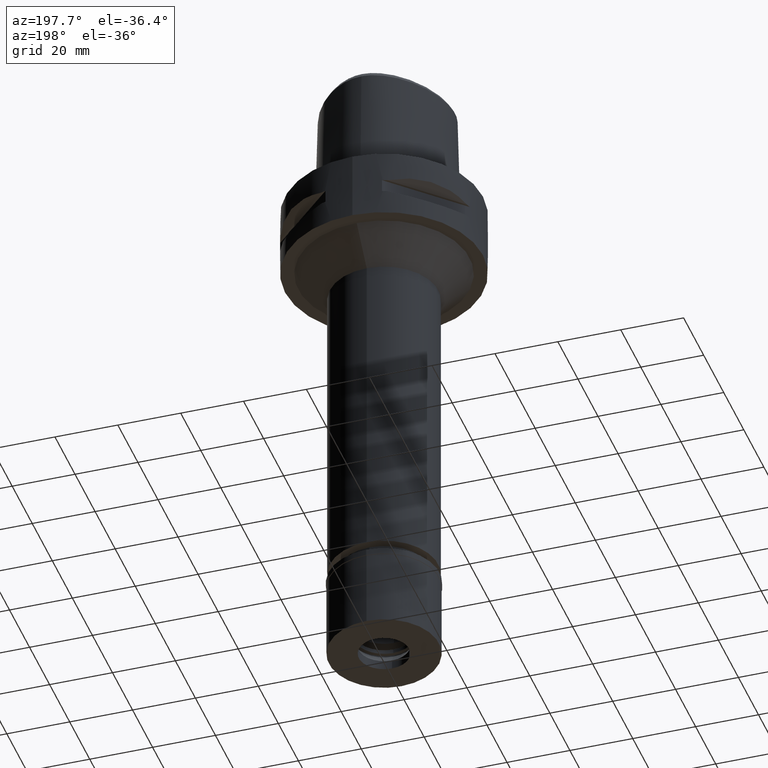
[diagram: clean part render]
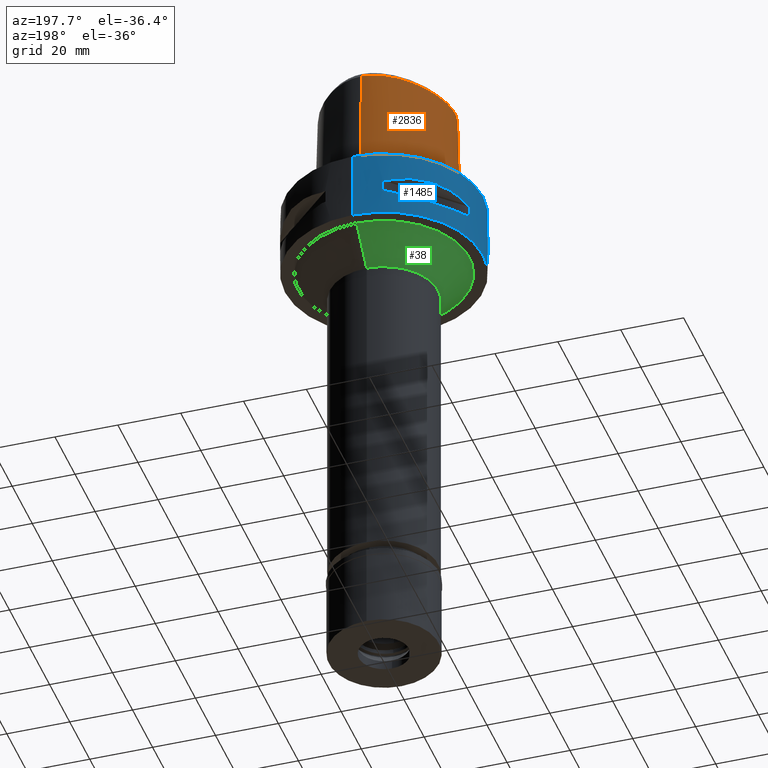
[diagram: same view with three faces highlighted in distinct colors, each labeled with its STEP entity id]
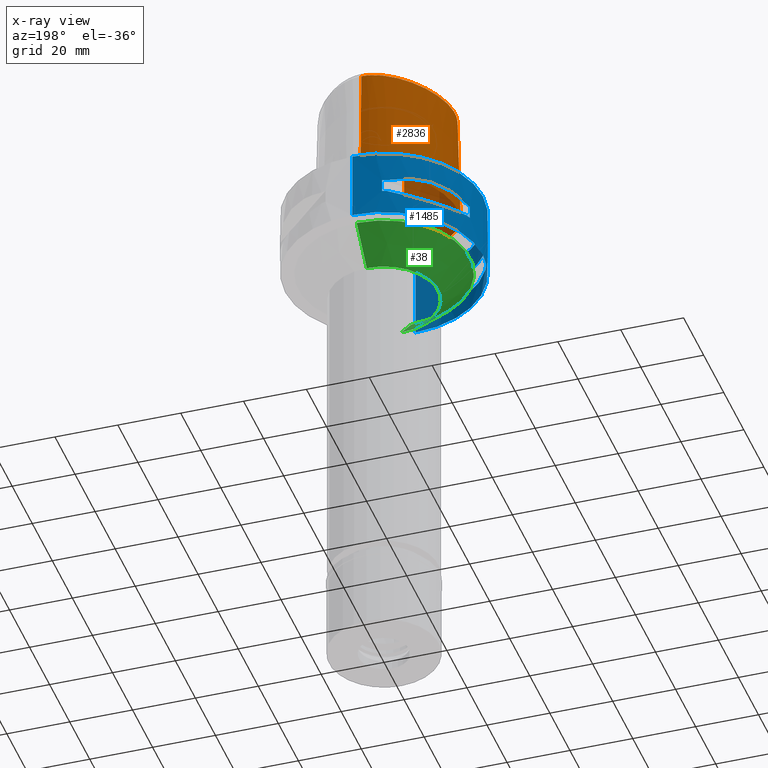
[diagram: x-ray of the same camera — body ghosted, the three highlighted faces saturated]
A machine part, auxiliary view with three faces highlighted in distinct colors.
The next image is the same camera in x-ray (body ghosted, the three faces saturated) — at least one of them is partly hidden behind the body in this view.
Their STEP definitions:

[orange] entity #2836 — the highlighted face is a freeform B-spline surface patch.
#20 = CARTESIAN_POINT ( 'NONE',  ( -17.90324032096781437, -13.53935111954875303, 36.52186244848006424 ) ) ;
#46 = CARTESIAN_POINT ( 'NONE',  ( -1.813182109769000202E-11, 22.56201468012000078, 36.52186680743999858 ) ) ;
#61 = CARTESIAN_POINT ( 'NONE',  ( 0.0000000000000000000, -20.18628283968999781, 19.55000000000000071 ) ) ;
#87 = CARTESIAN_POINT ( 'NONE',  ( -7.420053160085999799, 21.05635749102000176, 11.93048047699000058 ) ) ;
#96 = CARTESIAN_POINT ( 'NONE',  ( -3.089131642920992959, -20.21685897408069010, 12.88004451868239819 ) ) ;
#109 = CARTESIAN_POINT ( 'NONE',  ( -2.373090333079999947, 22.37624354556000128, 37.25231659141000051 ) ) ;
#121 = CARTESIAN_POINT ( 'NONE',  ( -2.086814383362593173, -20.31269213283710329, 12.02647857452719116 ) ) ;
#135 = CARTESIAN_POINT ( 'NONE',  ( -13.69241983444999988, 15.03666395342999884, 37.25231659141000051 ) ) ;
#136 = CARTESIAN_POINT ( 'NONE',  ( -22.24453910448134764, -4.100468749847681060, -1.034246438383172595E-06 ) ) ;
#150 = CARTESIAN_POINT ( 'NONE',  ( -6.933881406493999842E-13, -20.38876923348000147, 11.44999999999999929 ) ) ;
#160 = CARTESIAN_POINT ( 'NONE',  ( 0.6657744346489000709, -19.73734270106000110, 37.25231659141000051 ) ) ;
#173 = CARTESIAN_POINT ( 'NONE',  ( -3.438474044888219616, -20.17226853620289617, 13.35950353148342451 ) ) ;
#185 = CARTESIAN_POINT ( 'NONE',  ( -17.88993660667000185, -13.52675025285000032, 37.25231659141000051 ) ) ;
#199 = B_SPLINE_CURVE_WITH_KNOTS ( 'NONE', 3,
 ( #4461, #238, #4038, #561, #2105, #1769, #2845, #3330, #2928, #4508, #136, #3984, #4868, #4401, #3649, #215, #1371, #966, #2051, #914, #4484, #3597, #3229 ),
 .UNSPECIFIED., .F., .F.,
 ( 4, 1, 1, 1, 1, 1, 1, 1, 1, 1, 1, 1, 1, 1, 1, 1, 1, 1, 1, 1, 4 ),
 ( 0.0000000000000000000, 0.04166666666724999635, 0.08333333333387001052, 0.1250000000004999889, 0.1666666666672000086, 0.2500000000004000134, 0.3333333333335999904, 0.4166666666670000296, 0.5000000000001999512, 0.5416666666668999985, 0.5833333333333999837, 0.6250000000001000311, 0.6458333333333999837, 0.6666666666667000474, 0.6875000000000000000, 0.7083333333333000637, 0.7500000000000000000, 0.7916666666666000163, 0.8333333333332000326, 0.9166666666664999852, 1.000000000000000000 ),
 .UNSPECIFIED. ) ;
#213 = CARTESIAN_POINT ( 'NONE',  ( -11.02138184255000120, -18.31230465415999831, 24.59139853419999966 ) ) ;
#215 = CARTESIAN_POINT ( 'NONE',  ( -19.64947367958555091, -12.82525392147471166, -1.034246438383172595E-06 ) ) ;
#237 = CARTESIAN_POINT ( 'NONE',  ( -18.89485289226000120, -12.27684381620000131, 37.25231659141000051 ) ) ;
#238 = CARTESIAN_POINT ( 'NONE',  ( -0.8548392441382537399, 23.47500002585261214, -1.034246438383172595E-06 ) ) ;
#256 = CARTESIAN_POINT ( 'NONE',  ( -14.21104803024000063, -16.40237711533000109, 37.25231659141000051 ) ) ;
#334 = CARTESIAN_POINT ( 'NONE',  ( 0.0000000000000000000, -20.18628283968999781, 19.55000000000000071 ) ) ;
#336 = B_SPLINE_SURFACE_WITH_KNOTS ( 'NONE', 3, 3, ( 
 ( #2350, #3901, #1966, #1264 ),
 ( #2844, #3524, #2791, #1592 ),
 ( #829, #2374, #3928, #913 ),
 ( #454, #4344, #2820, #109 ),
 ( #3228, #3958, #4372, #3596 ),
 ( #3548, #87, #3171, #1618 ),
 ( #2428, #4728, #3571, #1641 ),
 ( #1566, #3197, #4752, #135 ),
 ( #1666, #1291, #4399, #2456 ),
 ( #4063, #4430, #4036, #1370 ),
 ( #4115, #2900, #4887, #3352 ),
 ( #2871, #3700, #2152, #639 ),
 ( #559, #2486, #1692, #1319 ),
 ( #3250, #4459, #3329, #2103 ),
 ( #965, #2178, #1416, #1768 ),
 ( #1040, #3674, #2953, #4506 ),
 ( #2510, #2590, #939, #237 ),
 ( #3723, #4139, #3648, #185 ),
 ( #1718, #4912, #4808, #584 ),
 ( #3276, #4836, #2130, #256 ),
 ( #1347, #4090, #213, #4534 ),
 ( #1746, #3308, #4866, #2926 ),
 ( #990, #1390, #4482, #2538 ),
 ( #612, #661, #1014, #3624 ),
 ( #2564, #1792, #2977, #160 ) ),
 .UNSPECIFIED., .F., .F., .F.,
 ( 4, 1, 1, 1, 1, 1, 1, 1, 1, 1, 1, 1, 1, 1, 1, 1, 1, 1, 1, 1, 1, 1, 4 ),
 ( 4, 4 ),
 ( -0.01173777939042000042, 0.0000000000000000000, 0.04166666666724999635, 0.08333333333387001052, 0.1250000000004999889, 0.1666666666672000086, 0.2500000000004000134, 0.3333333333335999904, 0.4166666666670000296, 0.5000000000001999512, 0.5416666666668999985, 0.5833333333333999837, 0.6250000000001000311, 0.6458333333333999837, 0.6666666666667000474, 0.6875000000000000000, 0.7083333333333000637, 0.7500000000000000000, 0.7916666666666000163, 0.8333333333332000326, 0.9166666666664999852, 1.000000000000000000, 1.008985696609000060 ),
 ( 4.009810272015000799E-09, 0.9999997954996000527 ),
 .UNSPECIFIED. ) ;
#366 = CARTESIAN_POINT ( 'NONE',  ( -1.944872162919951242, -20.14473830020723000, 19.05307826099487301 ) ) ;
#392 = CARTESIAN_POINT ( 'NONE',  ( -2.187955111047390488, -20.13397228737174771, 18.90818030784005188 ) ) ;
#414 = ORIENTED_EDGE ( 'NONE', *, *, #2122, .T. ) ;
#416 = CARTESIAN_POINT ( 'NONE',  ( -2.095753548405626443, -20.13818364214462875, 18.96577014706425501 ) ) ;
#445 = CARTESIAN_POINT ( 'NONE',  ( -1.025211814377291475, -20.17465818941732891, 19.42048404905546022 ) ) ;
#454 = CARTESIAN_POINT ( 'NONE',  ( -2.568271205268000124, 23.31126238145999707, -0.7304375802236999782 ) ) ;
#467 = CARTESIAN_POINT ( 'NONE',  ( -3.553766164807452999, -20.15576042543209923, 13.55638603583962798 ) ) ;
#487 = CARTESIAN_POINT ( 'NONE',  ( -4.467522189396158083, -19.48130287050819476, 36.52186244848006424 ) ) ;
#492 = CARTESIAN_POINT ( 'NONE',  ( -3.294464282139349720, -20.19175818983857695, 13.14063372506664606 ) ) ;
#507 = CARTESIAN_POINT ( 'NONE',  ( -3.736722311398999796, -19.67781602443999844, 31.80000000000000071 ) ) ;
#518 = CARTESIAN_POINT ( 'NONE',  ( -3.377353639916971240, -20.18061854612787087, 13.26476903757087378 ) ) ;
#559 = CARTESIAN_POINT ( 'NONE',  ( -22.07548128864999981, -6.850245535130000007, -0.7304375802236999782 ) ) ;
#561 = CARTESIAN_POINT ( 'NONE',  ( -5.098437026934316663, 22.52602541473402198, -1.034246438383172595E-06 ) ) ;
#584 = CARTESIAN_POINT ( 'NONE',  ( -16.38077696125999694, -14.94316464898999897, 37.25231659141000051 ) ) ;
#597 = ORIENTED_EDGE ( 'NONE', *, *, #1548, .T. ) ;
#599 = EDGE_CURVE ( 'NONE', #1736, #3879, #1930, .T. ) ;
#612 = CARTESIAN_POINT ( 'NONE',  ( 0.4560943669786999832, -20.69106768230999904, -0.7304375802236999782 ) ) ;
#639 = CARTESIAN_POINT ( 'NONE',  ( -21.31039837703000117, -4.105938496762999712, 37.25231659141000051 ) ) ;
#661 = CARTESIAN_POINT ( 'NONE',  ( 0.4520368087158999626, -20.37458464690000071, 11.93048047699000058 ) ) ;
#772 = CARTESIAN_POINT ( 'NONE',  ( -1.222079501492473241, -20.16967619644331933, 19.36182732690642538 ) ) ;
#819 = CARTESIAN_POINT ( 'NONE',  ( -3.623054736483410920, -20.05423874947322105, 17.31100359226990548 ) ) ;
#829 = CARTESIAN_POINT ( 'NONE',  ( -0.6149727125725999999, 23.51889464678999886, -0.7304375802236999782 ) ) ;
#843 = CARTESIAN_POINT ( 'NONE',  ( -3.520475118947736792, -20.16064927175108679, 13.49656734865834018 ) ) ;
#875 = CARTESIAN_POINT ( 'NONE',  ( -3.466483550187511753, -20.16833646136333158, 13.40542637771374146 ) ) ;
#898 = CARTESIAN_POINT ( 'NONE',  ( -2.875757950341226277, -20.24102512592877190, 12.64823125461331266 ) ) ;
#913 = CARTESIAN_POINT ( 'NONE',  ( -0.5657070368247999470, 22.56734916309999761, 37.25231659141000051 ) ) ;
#914 = CARTESIAN_POINT ( 'NONE',  ( -11.23259757615546128, -18.89324221193531983, -1.034246438383172595E-06 ) ) ;
#918 = CARTESIAN_POINT ( 'NONE',  ( -18.90964971338619804, -12.28759719904831726, 36.52186244848006424 ) ) ;
#924 = CARTESIAN_POINT ( 'NONE',  ( -0.5047993661900957996, -20.38876923348000503, 11.44999999999999929 ) ) ;
#939 = CARTESIAN_POINT ( 'NONE',  ( -19.15132530958999979, -12.46323155922000048, 24.59139853419999966 ) ) ;
#952 = CARTESIAN_POINT ( 'NONE',  ( -3.748882549353759863, -20.12487725615872591, 13.96753193210146016 ) ) ;
#965 = CARTESIAN_POINT ( 'NONE',  ( -20.94844325639000004, -10.61175396898000045, -0.7304375802236999782 ) ) ;
#966 = CARTESIAN_POINT ( 'NONE',  ( -16.95889174198938676, -15.67838869228107335, -1.034246438383172595E-06 ) ) ;
#990 = CARTESIAN_POINT ( 'NONE',  ( -1.886862292100000005, -20.71358859662999663, -0.7304375802236999782 ) ) ;
#1014 = CARTESIAN_POINT ( 'NONE',  ( 0.4479792504530000219, -20.05810161148999882, 24.59139853419999966 ) ) ;
#1040 = CARTESIAN_POINT ( 'NONE',  ( -20.36546124298000038, -11.75800453082999830, -0.7304375802236999782 ) ) ;
#1116 = EDGE_CURVE ( 'NONE', #3461, #2511, #2267, .T. ) ;
#1142 = B_SPLINE_CURVE_WITH_KNOTS ( 'NONE', 3,
 ( #2765, #3982, #4677, #507 ),
 .UNSPECIFIED., .F., .F.,
 ( 4, 4 ),
 ( 0.0000000000000000000, 1.000000000000000000 ),
 .UNSPECIFIED. ) ;
#1154 = CARTESIAN_POINT ( 'NONE',  ( -3.474550157063373668, -20.06258684786147839, 17.58509941784220487 ) ) ;
#1202 = CARTESIAN_POINT ( 'NONE',  ( -2.218923952806688416, -20.13252298611815405, 18.88809933006218955 ) ) ;
#1227 = CARTESIAN_POINT ( 'NONE',  ( -3.408875187706380760, -20.17633333109262495, 13.31312751154035645 ) ) ;
#1250 = CARTESIAN_POINT ( 'NONE',  ( -3.732557508995410167, -20.04859144260191783, 17.07180291399405903 ) ) ;
#1264 = CARTESIAN_POINT ( 'NONE',  ( 0.6658293008905999955, 22.52368289122999911, 37.25231659141000051 ) ) ;
#1281 = CARTESIAN_POINT ( 'NONE',  ( -4.001055636211793498, -20.04208398455365625, 16.14154222857165166 ) ) ;
#1291 = CARTESIAN_POINT ( 'NONE',  ( -17.80867312140999914, 10.28184210891000028, 11.93048047699000058 ) ) ;
#1297 = CARTESIAN_POINT ( 'NONE',  ( -3.637738201363999835, -19.56971413236999879, 36.52186244848000030 ) ) ;
#1304 = CARTESIAN_POINT ( 'NONE',  ( -3.765489374949923196, -20.12204791086962885, 14.00864527312733010 ) ) ;
#1319 = CARTESIAN_POINT ( 'NONE',  ( -21.13154892659999717, -6.714587083351999830, 37.25231659141000051 ) ) ;
#1347 = CARTESIAN_POINT ( 'NONE',  ( -11.23887130166999881, -18.91049775780000175, -0.7304375802236999782 ) ) ;
#1370 = CARTESIAN_POINT ( 'NONE',  ( -19.86834437125000008, 4.339653689466000053, 37.25231659141000051 ) ) ;
#1371 = CARTESIAN_POINT ( 'NONE',  ( -18.56841067026435965, -14.16937990065208552, -1.034246438383172595E-06 ) ) ;
#1390 = CARTESIAN_POINT ( 'NONE',  ( -1.870070494241999892, -20.39691396690000147, 11.93048047699000058 ) ) ;
#1416 = CARTESIAN_POINT ( 'NONE',  ( -20.36913780160999821, -10.35391846120000103, 24.59139853419999966 ) ) ;
#1498 = CARTESIAN_POINT ( 'NONE',  ( 6.821562232475935593E-09, -19.98212988583398797, 27.71666688228309994 ) ) ;
#1506 = CARTESIAN_POINT ( 'NONE',  ( -3.538328569009118407, -20.05892019842420382, 17.47427695038242845 ) ) ;
#1529 = CARTESIAN_POINT ( 'NONE',  ( -2.852856104024935391, -20.09931387729061569, 18.37467926461878065 ) ) ;
#1548 = EDGE_CURVE ( 'NONE', #4902, #1940, #2934, .T. ) ;
#1552 = CARTESIAN_POINT ( 'NONE',  ( -4.757642277158359967, 21.67478330407117681, 36.52186244848006424 ) ) ;
#1555 = DIRECTION ( 'NONE',  ( 1.535578410125960641E-12, 0.02499051290971940689, -0.9996876883629751687 ) ) ;
#1566 = CARTESIAN_POINT ( 'NONE',  ( -14.42198651810999976, 15.65278600090999994, -0.7304375802236999782 ) ) ;
#1580 = CARTESIAN_POINT ( 'NONE',  ( 0.0000000000000000000, -20.18628283968999781, 19.55000000000000071 ) ) ;
#1592 = CARTESIAN_POINT ( 'NONE',  ( 0.4441907078573000267, 22.53710793140999868, 37.25231659141000051 ) ) ;
#1604 = CARTESIAN_POINT ( 'NONE',  ( -1.572984596533470780, -20.34569619827901121, 11.76794029727463275 ) ) ;
#1618 = CARTESIAN_POINT ( 'NONE',  ( -7.099337802463000280, 20.50831395155999815, 37.25231659141000051 ) ) ;
#1629 = CARTESIAN_POINT ( 'NONE',  ( -1.592612062468478529, -20.34460894491098415, 11.77623291199352273 ) ) ;
#1641 = CARTESIAN_POINT ( 'NONE',  ( -10.14358078684999853, 18.45723421399999964, 37.25231659141000051 ) ) ;
#1648 = CARTESIAN_POINT ( 'NONE',  ( -21.32871527670060630, -4.105831244394563484, 36.52186244848006424 ) ) ;
#1655 = CARTESIAN_POINT ( 'NONE',  ( -1.678454493257345082, -20.33967188086224809, 11.81405957882908453 ) ) ;
#1663 = VECTOR ( 'NONE', #1555, 1000.000000000000114 ) ;
#1666 = CARTESIAN_POINT ( 'NONE',  ( -18.08416038101999845, 10.44089487089000023, -0.7304375802236999782 ) ) ;
#1688 = CARTESIAN_POINT ( 'NONE',  ( -2.503154198992773249, -19.81241979316222412, 31.80000012753033545 ) ) ;
#1692 = CARTESIAN_POINT ( 'NONE',  ( -21.44619304727999776, -6.759806567277999889, 24.59139853419999966 ) ) ;
#1718 = CARTESIAN_POINT ( 'NONE',  ( -16.97022730955999847, -15.69280482917999997, -0.7304375802236999782 ) ) ;
#1736 = VERTEX_POINT ( 'NONE', #3462 ) ;
#1746 = CARTESIAN_POINT ( 'NONE',  ( -6.344715576255000045, -20.31619964721000215, -0.7304375802236999782 ) ) ;
#1768 = CARTESIAN_POINT ( 'NONE',  ( -20.07948507421999906, -10.22500070731000044, 37.25231659141000051 ) ) ;
#1769 = CARTESIAN_POINT ( 'NONE',  ( -10.74572892731183948, 19.17433595741139030, -1.034246438383172595E-06 ) ) ;
#1792 = CARTESIAN_POINT ( 'NONE',  ( 0.6779535350887999634, -20.37023526527999806, 11.93048047699000058 ) ) ;
#1862 = ORIENTED_EDGE ( 'NONE', *, *, #4039, .T. ) ;
#1878 = CARTESIAN_POINT ( 'NONE',  ( -1.435263460290662652, -20.16346600381253751, 19.28743623777368654 ) ) ;
#1894 = VERTEX_POINT ( 'NONE', #4397 ) ;
#1905 = CARTESIAN_POINT ( 'NONE',  ( -2.360389010909460517, -20.12578017861218527, 18.79373387522309358 ) ) ;
#1927 = CARTESIAN_POINT ( 'NONE',  ( -3.637738201363999835, -19.56971413236999879, 36.52186244848000030 ) ) ;
#1930 = B_SPLINE_CURVE_WITH_KNOTS ( 'NONE', 3,
 ( #2645, #1498, #2720, #334 ),
 .UNSPECIFIED., .F., .F.,
 ( 4, 4 ),
 ( 0.0000000000000000000, 1.000000000000000000 ),
 .UNSPECIFIED. ) ;
#1933 = CARTESIAN_POINT ( 'NONE',  ( -2.236225399043197282, -20.13170464962382766, 18.87669531694534797 ) ) ;
#1940 = VERTEX_POINT ( 'NONE', #2217 ) ;
#1966 = CARTESIAN_POINT ( 'NONE',  ( 0.6850314155779999581, 22.83959056888999939, 24.59139853419999966 ) ) ;
#1983 = CARTESIAN_POINT ( 'NONE',  ( -1.656252726920341978, -20.15609978928733881, 19.19765142506812694 ) ) ;
#2007 = CARTESIAN_POINT ( 'NONE',  ( -3.024127618930171568, -20.22444760030265698, 12.80466032897661144 ) ) ;
#2028 = CARTESIAN_POINT ( 'NONE',  ( -20.67704215116113531, -8.734985316449126458, 36.52186244848006424 ) ) ;
#2035 = CARTESIAN_POINT ( 'NONE',  ( -3.952964639633005373, -20.08622609015964144, 14.60890045225523082 ) ) ;
#2051 = CARTESIAN_POINT ( 'NONE',  ( -14.67337965703199565, -17.21410158503573840, -1.034246438383172595E-06 ) ) ;
#2057 = CARTESIAN_POINT ( 'NONE',  ( -5.543970401669000547E-12, -20.67499999999999716, 7.264559324463998182E-14 ) ) ;
#2062 = CARTESIAN_POINT ( 'NONE',  ( -1.812541018726945063, -20.33144879143437578, 11.87771303033712478 ) ) ;
#2092 = CARTESIAN_POINT ( 'NONE',  ( -4.019649019913691390, -20.04316019034000007, 16.01163126942445913 ) ) ;
#2103 = CARTESIAN_POINT ( 'NONE',  ( -20.65947762274999988, -8.729764394216001477, 37.25231659141000051 ) ) ;
#2105 = CARTESIAN_POINT ( 'NONE',  ( -7.571159447450470203, 21.31457033488066699, -1.034246438383172595E-06 ) ) ;
#2122 = EDGE_CURVE ( 'NONE', #1940, #4160, #3511, .T. ) ;
#2130 = CARTESIAN_POINT ( 'NONE',  ( -14.36818034347999884, -16.67825731960000013, 24.59139853419999966 ) ) ;
#2140 = EDGE_CURVE ( 'NONE', #3879, #3461, #2796, .T. ) ;
#2152 = CARTESIAN_POINT ( 'NONE',  ( -21.62788410565000419, -4.104079497863000192, 24.59139853419999966 ) ) ;
#2178 = CARTESIAN_POINT ( 'NONE',  ( -20.65879052900000090, -10.48283621508999985, 11.93048047699000058 ) ) ;
#2203 = CARTESIAN_POINT ( 'NONE',  ( 3.796788966181000081E-11, 23.47499999999000053, 6.972200594645999482E-14 ) ) ;
#2217 = CARTESIAN_POINT ( 'NONE',  ( -1.813182109769000202E-11, 22.56201468012000078, 36.52186680743999858 ) ) ;
#2265 = CARTESIAN_POINT ( 'NONE',  ( -1.533377486154680280, -20.16026360294688402, 19.24851053760749764 ) ) ;
#2267 = LINE ( 'NONE', #2679, #2996 ) ;
#2290 = CARTESIAN_POINT ( 'NONE',  ( -0.8941136475711286558, -20.17742596329176763, 19.45229334933669918 ) ) ;
#2350 = CARTESIAN_POINT ( 'NONE',  ( 0.7234356449528999145, 23.47140592420999639, -0.7304375802236999782 ) ) ;
#2374 = CARTESIAN_POINT ( 'NONE',  ( -0.5985508206565999245, 23.20171281889999904, 11.93048047699000058 ) ) ;
#2389 = CARTESIAN_POINT ( 'NONE',  ( -2.945118222697315602, -20.23335776654016271, 12.71958560101062474 ) ) ;
#2408 = CARTESIAN_POINT ( 'NONE',  ( -21.07430010672948129, -0.4408303445192759407, 36.52186244848006424 ) ) ;
#2415 = CARTESIAN_POINT ( 'NONE',  ( -2.904838724128874006, -20.23782704190353243, 12.67778573503155393 ) ) ;
#2428 = CARTESIAN_POINT ( 'NONE',  ( -10.75753573655000039, 19.18839675560999680, -0.7304375802236999782 ) ) ;
#2441 = CARTESIAN_POINT ( 'NONE',  ( -2.647727988114028097, -20.26593689667631182, 12.42012271609242191 ) ) ;
#2456 = CARTESIAN_POINT ( 'NONE',  ( -17.25769860220000140, 9.963736584946000008, 37.25231659141000051 ) ) ;
#2462 = CARTESIAN_POINT ( 'NONE',  ( -2.376843896515535182, 22.39422508473839812, 36.52186244848006424 ) ) ;
#2469 = CARTESIAN_POINT ( 'NONE',  ( -3.862607746689350030, -20.10460055501470578, 14.28038032241867050 ) ) ;
#2480 = CARTESIAN_POINT ( 'NONE',  ( -1.251533273949724911, -19.88005341379840729, 31.80000012753033545 ) ) ;
#2486 = CARTESIAN_POINT ( 'NONE',  ( -21.76083716795999834, -6.805026051203999948, 11.93048047699000058 ) ) ;
#2493 = CARTESIAN_POINT ( 'NONE',  ( -13.70645028111556307, 15.04851272300801313, 36.52186244848006424 ) ) ;
#2500 = CARTESIAN_POINT ( 'NONE',  ( -3.215358272888209523, -20.20174660046934889, 13.03391498473856380 ) ) ;
#2510 = CARTESIAN_POINT ( 'NONE',  ( -19.66427014424999697, -12.83600704526999969, -0.7304375802236999782 ) ) ;
#2511 = VERTEX_POINT ( 'NONE', #2057 ) ;
#2538 = CARTESIAN_POINT ( 'NONE',  ( -1.836486898527999845, -19.76356470744000049, 37.25231659141000051 ) ) ;
#2564 = CARTESIAN_POINT ( 'NONE',  ( 0.6840430853087000607, -20.68668154738999831, -0.7304375802236999782 ) ) ;
#2590 = CARTESIAN_POINT ( 'NONE',  ( -19.40779772692000194, -12.64961930223999964, 11.93048047699000058 ) ) ;
#2645 = CARTESIAN_POINT ( 'NONE',  ( 2.041042029990999821E-08, -19.88004246002000031, 31.80000004972000127 ) ) ;
#2654 = CARTESIAN_POINT ( 'NONE',  ( -1.543048130380533900, -20.15993798682081817, 19.24453660913605546 ) ) ;
#2679 = CARTESIAN_POINT ( 'NONE',  ( -6.933881406493999842E-13, -20.38876923348000147, 11.44999999999999929 ) ) ;
#2700 = CARTESIAN_POINT ( 'NONE',  ( -7.108589416785820347, 20.52412325828229456, 36.52186244848006424 ) ) ;
#2701 = CARTESIAN_POINT ( 'NONE',  ( -3.649474620161943239, -20.05281468735704919, 17.25706831816536635 ) ) ;
#2720 = CARTESIAN_POINT ( 'NONE',  ( 6.841563408373843762E-09, -20.08420636276207460, 23.63333344114143131 ) ) ;
#2753 = CARTESIAN_POINT ( 'NONE',  ( -2.781497320433752307, -20.10345565782016664, 18.44409576488591895 ) ) ;
#2765 = CARTESIAN_POINT ( 'NONE',  ( -3.637738201363999835, -19.56971413236999879, 36.52186244848000030 ) ) ;
#2780 = CARTESIAN_POINT ( 'NONE',  ( -3.388781880797234525, -20.17907268769692664, 13.28211842279118748 ) ) ;
#2791 = CARTESIAN_POINT ( 'NONE',  ( 0.4569144571157000012, 22.85341801415999896, 24.59139853419999966 ) ) ;
#2796 = B_SPLINE_CURVE_WITH_KNOTS ( 'NONE', 3,
 ( #1580, #4228, #4690, #2290, #445, #772, #3833, #1878, #4664, #3890, #2265, #2654, #1983, #3038, #366, #3135, #416, #4598, #392, #1202, #1933, #1905, #3464, #3084, #3440, #2753, #4302, #4205, #1529, #4641, #3487, #5002, #1154, #1506, #819, #2701, #3108, #3916, #2834, #1250, #4385, #3970, #4330, #3944, #1281, #2092, #4022, #2808, #4795, #3263, #3185, #3996, #3638, #2035, #4769, #2469, #4446, #4052, #1304, #3584, #952, #3159, #4360, #3241, #467, #843, #875, #173, #1227, #2780, #518, #492, #2500, #96, #2007, #2389, #2415, #3213, #898, #4716, #2441, #4823, #121, #3557, #2062, #4413, #1655, #3611, #1629, #1604, #2884, #2856, #4740, #924, #150 ),
 .UNSPECIFIED., .F., .F.,
 ( 4, 2, 2, 1, 1, 1, 2, 2, 2, 2, 1, 2, 2, 2, 1, 1, 1, 2, 2, 2, 2, 2, 1, 1, 2, 2, 2, 2, 1, 2, 2, 2, 2, 1, 1, 1, 2, 2, 2, 2, 1, 2, 2, 2, 1, 1, 1, 2, 2, 2, 2, 2, 1, 1, 2, 2, 4 ),
 ( 0.0000000000000000000, 0.06249999999998642752, 0.09374999999997969680, 0.1093749999999764494, 0.1171874999999746730, 0.1210937499999737849, 0.1230468749999731881, 0.1249999999999725775, 0.1562499999999637790, 0.1718749999999593381, 0.1796874999999573119, 0.1835937499999563682, 0.1874999999999553968, 0.2187499999999474032, 0.2343749999999434064, 0.2421874999999414635, 0.2460937499999405476, 0.2480468749999403255, 0.2499999999999401312, 0.3124999999999270028, 0.3437499999999206746, 0.3593749999999179545, 0.3671874999999170663, 0.3710937499999170108, 0.3730468749999170663, 0.3749999999999170663, 0.4374999999999202860, 0.4687499999999215072, 0.4843749999999221179, 0.4921874999999224509, 0.4999999999999227285, 0.5624999999999261702, 0.5937499999999280575, 0.6093749999999291678, 0.6171874999999297229, 0.6210937499999299449, 0.6230468749999300559, 0.6249999999999301670, 0.6562499999999366063, 0.6718749999999400480, 0.6796874999999416023, 0.6835937499999423794, 0.6874999999999431566, 0.7187499999999507061, 0.7343749999999547029, 0.7421874999999563682, 0.7460937499999573674, 0.7480468749999579225, 0.7499999999999584777, 0.8124999999999692468, 0.8437499999999745759, 0.8593749999999771294, 0.8671874999999784617, 0.8710937499999790168, 0.8730468749999793499, 0.8749999999999796829, 1.000000000000000000 ),
 .UNSPECIFIED. ) ;
#2804 = EDGE_CURVE ( 'NONE', #4902, #1894, #1142, .T. ) ;
#2808 = CARTESIAN_POINT ( 'NONE',  ( -4.044848056823932225, -20.04744994059100094, 15.72117637690397274 ) ) ;
#2816 = ORIENTED_EDGE ( 'NONE', *, *, #2804, .F. ) ;
#2820 = CARTESIAN_POINT ( 'NONE',  ( -2.438150623809000273, 22.68791649086000106, 24.59139853419999966 ) ) ;
#2834 = CARTESIAN_POINT ( 'NONE',  ( -3.724287987559549151, -20.04899117660403718, 17.09139312267754462 ) ) ;
#2836 = ADVANCED_FACE ( 'NONE', ( #4291 ), #336, .T. ) ;
#2844 = CARTESIAN_POINT ( 'NONE',  ( 0.4823619556325000057, 23.48603817965999951, -0.7304375802236999782 ) ) ;
#2845 = CARTESIAN_POINT ( 'NONE',  ( -14.40795640944389788, 15.64093751677334332, -1.034246438383172595E-06 ) ) ;
#2849 = CARTESIAN_POINT ( 'NONE',  ( -7.300578999877704867, -19.07170748892296430, 36.52186244848006424 ) ) ;
#2856 = CARTESIAN_POINT ( 'NONE',  ( -1.554881956804947896, -20.34669101430225524, 11.76035872671678639 ) ) ;
#2865 = CARTESIAN_POINT ( 'NONE',  ( -16.39211280191586084, -14.95758113318876070, 36.52186244848006424 ) ) ;
#2871 = CARTESIAN_POINT ( 'NONE',  ( -22.26285556288999956, -4.100361500063000264, -0.7304375802236999782 ) ) ;
#2884 = CARTESIAN_POINT ( 'NONE',  ( -1.559921522259040794, -20.34641501698337507, 11.76246137009513149 ) ) ;
#2900 = CARTESIAN_POINT ( 'NONE',  ( -21.68301106270000034, -0.3332743945403000008, 11.93048047699000058 ) ) ;
#2913 = B_SPLINE_CURVE_WITH_KNOTS ( 'NONE', 3,
 ( #3619, #2480, #1688, #3271 ),
 .UNSPECIFIED., .F., .F.,
 ( 4, 4 ),
 ( 0.0000000000000000000, 1.000000000000000000 ),
 .UNSPECIFIED. ) ;
#2926 = CARTESIAN_POINT ( 'NONE',  ( -6.175998609984999277, -19.37631799247999709, 37.25231659141000051 ) ) ;
#2928 = CARTESIAN_POINT ( 'NONE',  ( -20.74942743326079864, 4.657187508816048371, -1.034246438383172595E-06 ) ) ;
#2934 = B_SPLINE_CURVE_WITH_KNOTS ( 'NONE', 3,
 ( #1297, #487, #2849, #3083, #3485, #2865, #20, #918, #3989, #4815, #2028, #3579, #1648, #2408, #4639, #4378, #2493, #4045, #2700, #1552, #2462, #3107, #3632 ),
 .UNSPECIFIED., .F., .F.,
 ( 4, 1, 1, 1, 1, 1, 1, 1, 1, 1, 1, 1, 1, 1, 1, 1, 1, 1, 1, 1, 4 ),
 ( 0.0000000000000000000, 0.03580973941722837006, 0.1234633994701884313, 0.1672902294966159276, 0.2111170595230434099, 0.2549438895495759749, 0.2768573045627897855, 0.2987707195760034851, 0.3206841345892172401, 0.3425975496024309397, 0.3864243796289636435, 0.4302512096552859044, 0.4740780396818186082, 0.5617316997346735175, 0.6493853597877387029, 0.7370390198405937232, 0.8246926798934486325, 0.8685195099199813917, 0.9123463399464403212, 0.9561731699728889255, 1.000000000000000000 ),
 .UNSPECIFIED. ) ;
#2953 = CARTESIAN_POINT ( 'NONE',  ( -19.81622831960000042, -11.44090475347000080, 24.59139853419999966 ) ) ;
#2977 = CARTESIAN_POINT ( 'NONE',  ( 0.6718639848689000882, -20.05378898317000136, 24.59139853419999966 ) ) ;
#2996 = VECTOR ( 'NONE', #3001, 1000.000000000000114 ) ;
#3001 = DIRECTION ( 'NONE',  ( -4.234993334259874390E-13, -0.02499051295389925070, -0.9996876883618708298 ) ) ;
#3035 = ORIENTED_EDGE ( 'NONE', *, *, #599, .F. ) ;
#3038 = CARTESIAN_POINT ( 'NONE',  ( -1.768917262159672488, -20.15190475906431899, 19.14568281053833942 ) ) ;
#3083 = CARTESIAN_POINT ( 'NONE',  ( -10.91891098965434814, -18.03046406390817324, 36.52186244848006424 ) ) ;
#3084 = CARTESIAN_POINT ( 'NONE',  ( -2.621021505587192379, -20.11233874864635851, 18.58822781674975033 ) ) ;
#3107 = CARTESIAN_POINT ( 'NONE',  ( -0.7901461696973148818, 22.56201478746193700, 36.52186244848006424 ) ) ;
#3108 = CARTESIAN_POINT ( 'NONE',  ( -3.686560471766089808, -20.05088322548402502, 17.17709135335211457 ) ) ;
#3135 = CARTESIAN_POINT ( 'NONE',  ( -2.004675599378036299, -20.14220382833444489, 19.01976680094072591 ) ) ;
#3159 = CARTESIAN_POINT ( 'NONE',  ( -3.744859968352620250, -20.12555785049273993, 13.95773689203772960 ) ) ;
#3171 = CARTESIAN_POINT ( 'NONE',  ( -7.259695481273999995, 20.78233572128999995, 24.59139853419999966 ) ) ;
#3185 = CARTESIAN_POINT ( 'NONE',  ( -4.050018014422889223, -20.05167593067615073, 15.52805627100565999 ) ) ;
#3197 = CARTESIAN_POINT ( 'NONE',  ( -14.17879762355999951, 15.44741198508000224, 11.93048047699000058 ) ) ;
#3213 = CARTESIAN_POINT ( 'NONE',  ( -2.887412005234944345, -20.23974548682597430, 12.66003157092543852 ) ) ;
#3217 = ORIENTED_EDGE ( 'NONE', *, *, #4753, .T. ) ;
#3228 = CARTESIAN_POINT ( 'NONE',  ( -5.105252915177000084, 22.54305024007999947, -0.7304375802236999782 ) ) ;
#3229 = CARTESIAN_POINT ( 'NONE',  ( -5.543970401669000547E-12, -20.67499999999999716, 7.264559324463998182E-14 ) ) ;
#3241 = CARTESIAN_POINT ( 'NONE',  ( -3.646271025386951248, -20.14180172674265989, 13.73229968810843538 ) ) ;
#3250 = CARTESIAN_POINT ( 'NONE',  ( -21.57281239023999930, -9.001246194475998053, -0.7304375802236999782 ) ) ;
#3263 = CARTESIAN_POINT ( 'NONE',  ( -4.049663826248573351, -20.05088590020230654, 15.56119206774690511 ) ) ;
#3271 = CARTESIAN_POINT ( 'NONE',  ( -3.736722311398999796, -19.67781602443999844, 31.80000000000000071 ) ) ;
#3276 = CARTESIAN_POINT ( 'NONE',  ( -14.68244496996000059, -17.23001772813000088, -0.7304375802236999782 ) ) ;
#3308 = CARTESIAN_POINT ( 'NONE',  ( -6.288476587498999848, -20.00290576229999928, 11.93048047699000058 ) ) ;
#3329 = CARTESIAN_POINT ( 'NONE',  ( -20.96392254523999910, -8.820258327635999152, 24.59139853419999966 ) ) ;
#3330 = CARTESIAN_POINT ( 'NONE',  ( -18.06826690777731059, 10.43171876299925849, -1.034246438383172595E-06 ) ) ;
#3352 = CARTESIAN_POINT ( 'NONE',  ( -21.05621916112999870, -0.4440251502992000332, 37.25231659141000051 ) ) ;
#3440 = CARTESIAN_POINT ( 'NONE',  ( -2.696415149898506503, -20.10825975497922968, 18.52316981035199106 ) ) ;
#3461 = VERTEX_POINT ( 'NONE', #4790 ) ;
#3462 = CARTESIAN_POINT ( 'NONE',  ( 2.041042029990999821E-08, -19.88004246002000031, 31.80000004972000127 ) ) ;
#3464 = CARTESIAN_POINT ( 'NONE',  ( -2.467128207654243788, -20.12044499745018200, 18.71456023906638677 ) ) ;
#3478 = ORIENTED_EDGE ( 'NONE', *, *, #2140, .F. ) ;
#3485 = CARTESIAN_POINT ( 'NONE',  ( -14.22011356156053274, -16.41829364186076035, 36.52186244848006424 ) ) ;
#3487 = CARTESIAN_POINT ( 'NONE',  ( -3.081149392581268742, -20.08583124627752170, 18.14629112889929274 ) ) ;
#3511 = LINE ( 'NONE', #46, #1663 ) ;
#3524 = CARTESIAN_POINT ( 'NONE',  ( 0.4696382063741000312, 23.16972809691000279, 11.93048047699000058 ) ) ;
#3548 = CARTESIAN_POINT ( 'NONE',  ( -7.580410838898000492, 21.33037926075000001, -0.7304375802236999782 ) ) ;
#3557 = CARTESIAN_POINT ( 'NONE',  ( -1.975954942206384679, -20.32065689222432781, 11.96260358356618525 ) ) ;
#3571 = CARTESIAN_POINT ( 'NONE',  ( -10.34823243674999915, 18.70095506119999840, 24.59139853419999966 ) ) ;
#3579 = CARTESIAN_POINT ( 'NONE',  ( -21.14970188363366077, -6.717195958887378637, 36.52186244848006424 ) ) ;
#3584 = CARTESIAN_POINT ( 'NONE',  ( -3.755562140673116556, -20.12374194796142746, 13.98397501487587746 ) ) ;
#3596 = CARTESIAN_POINT ( 'NONE',  ( -4.750826224713999402, 21.65775806857999797, 37.25231659141000051 ) ) ;
#3597 = CARTESIAN_POINT ( 'NONE',  ( -2.113823674601347680, -20.67500002585100205, -1.034246438383172595E-06 ) ) ;
#3611 = CARTESIAN_POINT ( 'NONE',  ( -1.638635025843681925, -20.34200884320513580, 11.79610711465591244 ) ) ;
#3619 = CARTESIAN_POINT ( 'NONE',  ( 2.041042029990999821E-08, -19.88004246002000031, 31.80000004972000127 ) ) ;
#3624 = CARTESIAN_POINT ( 'NONE',  ( 0.4439216921902000013, -19.74161857608000048, 37.25231659141000051 ) ) ;
#3632 = CARTESIAN_POINT ( 'NONE',  ( -1.813182109769000202E-11, 22.56201468012000078, 36.52186680743999858 ) ) ;
#3638 = CARTESIAN_POINT ( 'NONE',  ( -4.027530768677416440, -20.06783249596207597, 14.99855479653706780 ) ) ;
#3648 = CARTESIAN_POINT ( 'NONE',  ( -18.12052909247000088, -13.74516032317000125, 24.59139853419999966 ) ) ;
#3649 = CARTESIAN_POINT ( 'NONE',  ( -20.34961800800770959, -11.74885743481933176, -1.034246438383172595E-06 ) ) ;
#3674 = CARTESIAN_POINT ( 'NONE',  ( -20.09084478128999862, -11.59945464215000044, 11.93048047699000058 ) ) ;
#3700 = CARTESIAN_POINT ( 'NONE',  ( -21.94536983427000010, -4.102220498962999784, 11.93048047699000058 ) ) ;
#3723 = CARTESIAN_POINT ( 'NONE',  ( -18.58171406407000248, -14.18198046378999955, -0.7304375802236999782 ) ) ;
#3833 = CARTESIAN_POINT ( 'NONE',  ( -1.320565687271252564, -20.16697761691574442, 19.32976498246145880 ) ) ;
#3879 = VERTEX_POINT ( 'NONE', #61 ) ;
#3890 = CARTESIAN_POINT ( 'NONE',  ( -1.517038990532322273, -20.16080850842839567, 19.25515252244234077 ) ) ;
#3901 = CARTESIAN_POINT ( 'NONE',  ( 0.7042335302654999518, 23.15549824654999966, 11.93048047699000058 ) ) ;
#3916 = CARTESIAN_POINT ( 'NONE',  ( -3.704467467891559895, -20.04996865237282577, 17.13733399074463293 ) ) ;
#3928 = CARTESIAN_POINT ( 'NONE',  ( -0.5821289287406999913, 22.88453099099999832, 24.59139853419999966 ) ) ;
#3944 = CARTESIAN_POINT ( 'NONE',  ( -3.925407708632547177, -20.04099055260236284, 16.53138977182224423 ) ) ;
#3958 = CARTESIAN_POINT ( 'NONE',  ( -4.987110685023000478, 22.24795284958000252, 11.93048047699000058 ) ) ;
#3970 = CARTESIAN_POINT ( 'NONE',  ( -3.740129524201636801, -20.04822853724978060, 17.05370687140991137 ) ) ;
#3982 = CARTESIAN_POINT ( 'NONE',  ( -3.671249123513567802, -19.60525173594972514, 34.94790829898666829 ) ) ;
#3984 = CARTESIAN_POINT ( 'NONE',  ( -22.05732876892827576, -6.847636722443547264, -1.034246438383172595E-06 ) ) ;
#3989 = CARTESIAN_POINT ( 'NONE',  ( -19.55745547456179878, -11.29150218116343218, 36.52186244848006424 ) ) ;
#3996 = CARTESIAN_POINT ( 'NONE',  ( -4.049848995936168095, -20.05861656952082939, 15.25314035233474108 ) ) ;
#4022 = CARTESIAN_POINT ( 'NONE',  ( -4.038031914720692228, -20.04584209172336529, 15.81781984752944581 ) ) ;
#4036 = CARTESIAN_POINT ( 'NONE',  ( -20.16779742977000112, 4.447573677359999422, 24.59139853419999966 ) ) ;
#4038 = CARTESIAN_POINT ( 'NONE',  ( -2.564517732271363037, 23.29328127546035532, -1.034246438383172595E-06 ) ) ;
#4039 = EDGE_CURVE ( 'NONE', #4160, #2511, #199, .T. ) ;
#4045 = CARTESIAN_POINT ( 'NONE',  ( -10.15538788052609753, 18.47129535093741026, 36.52186244848006424 ) ) ;
#4052 = CARTESIAN_POINT ( 'NONE',  ( -3.788010122577049721, -20.11815763408465330, 14.06624340820799723 ) ) ;
#4063 = CARTESIAN_POINT ( 'NONE',  ( -20.76670354678999786, 4.663413653147999938, -0.7304375802236999782 ) ) ;
#4090 = CARTESIAN_POINT ( 'NONE',  ( -11.13012657210999912, -18.61140120598000181, 11.93048047699000058 ) ) ;
#4115 = CARTESIAN_POINT ( 'NONE',  ( -21.99640701348999983, -0.2778990166607999690, -0.7304375802236999782 ) ) ;
#4139 = CARTESIAN_POINT ( 'NONE',  ( -18.35112157826999990, -13.96357039347999951, 11.93048047699000058 ) ) ;
#4160 = VERTEX_POINT ( 'NONE', #2203 ) ;
#4205 = CARTESIAN_POINT ( 'NONE',  ( -2.841055161951131947, -20.10000556631500856, 18.38634273631047122 ) ) ;
#4228 = CARTESIAN_POINT ( 'NONE',  ( -0.2473412322726142587, -20.18628283968999426, 19.55000000000000071 ) ) ;
#4291 = FACE_OUTER_BOUND ( 'NONE', #4420, .T. ) ;
#4302 = CARTESIAN_POINT ( 'NONE',  ( -2.823299992936004088, -20.10104229143708920, 18.40378355436401137 ) ) ;
#4330 = CARTESIAN_POINT ( 'NONE',  ( -3.848403410399269475, -20.04310851184510156, 16.79149714040344321 ) ) ;
#4344 = CARTESIAN_POINT ( 'NONE',  ( -2.503210914538999798, 22.99958943615999729, 11.93048047699000058 ) ) ;
#4360 = CARTESIAN_POINT ( 'NONE',  ( -3.698122373793029993, -20.13343971463974924, 13.84482020408101022 ) ) ;
#4372 = CARTESIAN_POINT ( 'NONE',  ( -4.868968454869000873, 21.95285545907999847, 24.59139853419999966 ) ) ;
#4378 = CARTESIAN_POINT ( 'NONE',  ( -17.27359245833247670, 9.972912913898657195, 36.52186244848006424 ) ) ;
#4385 = CARTESIAN_POINT ( 'NONE',  ( -3.738021026999629459, -20.04832921641927967, 17.05876513949563389 ) ) ;
#4397 = CARTESIAN_POINT ( 'NONE',  ( -3.736722311398999796, -19.67781602443999844, 31.80000000000000071 ) ) ;
#4399 = CARTESIAN_POINT ( 'NONE',  ( -17.53318586181000072, 10.12278934693000032, 24.59139853419999966 ) ) ;
#4401 = CARTESIAN_POINT ( 'NONE',  ( -20.93173254577867937, -10.60431641678662373, -1.034246438383172595E-06 ) ) ;
#4413 = CARTESIAN_POINT ( 'NONE',  ( -1.758544761684938340, -20.33485355119260518, 11.85123508313016316 ) ) ;
#4420 = EDGE_LOOP ( 'NONE', ( #4499, #3478, #3035, #3217, #2816, #597, #414, #1862 ) ) ;
#4430 = CARTESIAN_POINT ( 'NONE',  ( -20.46725048828000126, 4.555493665254000568, 11.93048047699000058 ) ) ;
#4446 = CARTESIAN_POINT ( 'NONE',  ( -3.830499027157554082, -20.11062698623148393, 14.18153512544096984 ) ) ;
#4459 = CARTESIAN_POINT ( 'NONE',  ( -21.26836746773999920, -8.910752261056000378, 11.93048047699000058 ) ) ;
#4461 = CARTESIAN_POINT ( 'NONE',  ( 3.796788966181000081E-11, 23.47499999999000053, 6.972200594645999482E-14 ) ) ;
#4482 = CARTESIAN_POINT ( 'NONE',  ( -1.853278696384999868, -20.08023933716999920, 24.59139853419999966 ) ) ;
#4484 = CARTESIAN_POINT ( 'NONE',  ( -6.341471023805361540, -20.29812502559606813, -1.034246438383172595E-06 ) ) ;
#4499 = ORIENTED_EDGE ( 'NONE', *, *, #1116, .F. ) ;
#4506 = CARTESIAN_POINT ( 'NONE',  ( -19.54161185790999866, -11.28235486478999938, 37.25231659141000051 ) ) ;
#4508 = CARTESIAN_POINT ( 'NONE',  ( -21.97832650346822803, -0.2810937454764912968, -1.034246438383172595E-06 ) ) ;
#4534 = CARTESIAN_POINT ( 'NONE',  ( -10.91263711299999883, -18.01320810234000191, 37.25231659141000051 ) ) ;
#4598 = CARTESIAN_POINT ( 'NONE',  ( -2.141634863655995424, -20.13611892945455750, 18.93776449056861111 ) ) ;
#4639 = CARTESIAN_POINT ( 'NONE',  ( -19.88562090097876478, 4.345879983792045209, 36.52186244848006424 ) ) ;
#4641 = CARTESIAN_POINT ( 'NONE',  ( -2.857836109605275343, -20.09902107152586126, 18.36973246307368157 ) ) ;
#4664 = CARTESIAN_POINT ( 'NONE',  ( -1.492522727687785933, -20.16161937968067974, 19.26502569008773236 ) ) ;
#4677 = CARTESIAN_POINT ( 'NONE',  ( -3.704239276368590961, -19.64128040965313460, 33.37395414949332917 ) ) ;
#4690 = CARTESIAN_POINT ( 'NONE',  ( -0.5036866637163954774, -20.18406862059044471, 19.52728785670090161 ) ) ;
#4716 = CARTESIAN_POINT ( 'NONE',  ( -2.870809693610211433, -20.24156730632855883, 12.64324605246988753 ) ) ;
#4728 = CARTESIAN_POINT ( 'NONE',  ( -10.55288408664999977, 18.94467590840999804, 11.93048047699000058 ) ) ;
#4740 = CARTESIAN_POINT ( 'NONE',  ( -1.035503055406706396, -20.37488775911208094, 11.54570873351940641 ) ) ;
#4752 = CARTESIAN_POINT ( 'NONE',  ( -13.93560872900000014, 15.24203796924999921, 24.59139853419999966 ) ) ;
#4753 = EDGE_CURVE ( 'NONE', #1736, #1894, #2913, .T. ) ;
#4769 = CARTESIAN_POINT ( 'NONE',  ( -3.921269265871361931, -20.09311890564809744, 14.47775228273900971 ) ) ;
#4790 = CARTESIAN_POINT ( 'NONE',  ( -6.933881406493999842E-13, -20.38876923348000147, 11.44999999999999929 ) ) ;
#4795 = CARTESIAN_POINT ( 'NONE',  ( -4.048193638326266885, -20.04945813672258481, 15.62509932612174346 ) ) ;
#4808 = CARTESIAN_POINT ( 'NONE',  ( -16.57726041068999834, -15.19304470905999871, 24.59139853419999966 ) ) ;
#4815 = CARTESIAN_POINT ( 'NONE',  ( -20.09619618740918057, -10.23243843868150371, 36.52186244848006424 ) ) ;
#4823 = CARTESIAN_POINT ( 'NONE',  ( -2.421503357401903145, -20.28648737493387344, 12.24279215501958795 ) ) ;
#4836 = CARTESIAN_POINT ( 'NONE',  ( -14.52531265672000060, -16.95413752386999917, 11.93048047699000058 ) ) ;
#4866 = CARTESIAN_POINT ( 'NONE',  ( -6.232237598742000451, -19.68961187738999641, 24.59139853419999966 ) ) ;
#4868 = CARTESIAN_POINT ( 'NONE',  ( -21.55524828496530176, -8.996025398017126307, -1.034246438383172595E-06 ) ) ;
#4887 = CARTESIAN_POINT ( 'NONE',  ( -21.36961511191999818, -0.3886497724197999770, 24.59139853419999966 ) ) ;
#4902 = VERTEX_POINT ( 'NONE', #1927 ) ;
#4912 = CARTESIAN_POINT ( 'NONE',  ( -16.77374386013000063, -15.44292476912000112, 11.93048047699000058 ) ) ;
#5002 = CARTESIAN_POINT ( 'NONE',  ( -3.258446753586496492, -20.07522384658320291, 17.91983021284175592 ) ) ;

[blue] entity #1485 — the highlighted cylindrical surface (partial cylindrical patch) has radius 31.5 mm, axis along (0, 0, -1).
#10 = CARTESIAN_POINT ( 'NONE',  ( -10.44775724750000023, -29.71690375017999841, -14.05000000000000071 ) ) ;
#15 = LINE ( 'NONE', #39, #5008 ) ;
#39 = CARTESIAN_POINT ( 'NONE',  ( -30.19251670572000279, 8.981198972016999349, -14.05000000000000071 ) ) ;
#71 = ORIENTED_EDGE ( 'NONE', *, *, #1611, .T. ) ;
#92 = CARTESIAN_POINT ( 'NONE',  ( 0.0000000000000000000, 1.318944602681999963E-14, -14.05000000000000071 ) ) ;
#110 = CARTESIAN_POINT ( 'NONE',  ( -17.05047092244640083, -26.48642424310511601, -15.42670883407999227 ) ) ;
#128 = VECTOR ( 'NONE', #4117, 1000.000000000000000 ) ;
#187 = CARTESIAN_POINT ( 'NONE',  ( -26.52527364208752303, 16.98999780422271044, -15.41788098766625659 ) ) ;
#200 = DIRECTION ( 'NONE',  ( 0.0000000000000000000, 0.0000000000000000000, 1.000000000000000000 ) ) ;
#209 = EDGE_CURVE ( 'NONE', #3532, #2522, #4307, .T. ) ;
#222 = EDGE_LOOP ( 'NONE', ( #969, #3953, #2746, #4986 ) ) ;
#274 = LINE ( 'NONE', #1813, #835 ) ;
#283 = CARTESIAN_POINT ( 'NONE',  ( -23.90617837140510105, 20.64154884334740458, -8.160613588444466160 ) ) ;
#310 = VERTEX_POINT ( 'NONE', #4807 ) ;
#331 = DIRECTION ( 'NONE',  ( 0.0000000000000000000, 0.0000000000000000000, -1.000000000000000000 ) ) ;
#365 = FACE_BOUND ( 'NONE', #3889, .T. ) ;
#403 = CARTESIAN_POINT ( 'NONE',  ( -27.11872488588982577, -16.03138450079550026, -15.26880420108212633 ) ) ;
#438 = EDGE_CURVE ( 'NONE', #310, #3955, #5022, .T. ) ;
#461 = CARTESIAN_POINT ( 'NONE',  ( -20.64154884328073081, -23.90617837147174995, -8.160613588468017099 ) ) ;
#481 = CARTESIAN_POINT ( 'NONE',  ( -21.46242677079953509, -23.08532645887220625, -15.83938991065873481 ) ) ;
#508 = CARTESIAN_POINT ( 'NONE',  ( -18.86897208075159327, 25.32725744466621975, -15.69588095933951699 ) ) ;
#522 = VECTOR ( 'NONE', #331, 1000.000000000000000 ) ;
#537 = DIRECTION ( 'NONE',  ( 0.0000000000000000000, 0.0000000000000000000, 1.000000000000000000 ) ) ;
#560 = EDGE_CURVE ( 'NONE', #1333, #4738, #3858, .T. ) ;
#579 = CARTESIAN_POINT ( 'NONE',  ( -29.71690375017999841, -10.44775724750000023, -9.950000000002001244 ) ) ;
#614 = CARTESIAN_POINT ( 'NONE',  ( -20.65093790436479892, 23.89673728055571900, -15.83935804902246147 ) ) ;
#646 = DIRECTION ( 'NONE',  ( 0.0000000000000000000, 1.000000000000000000, 0.0000000000000000000 ) ) ;
#658 = VERTEX_POINT ( 'NONE', #4779 ) ;
#676 = ORIENTED_EDGE ( 'NONE', *, *, #2611, .T. ) ;
#724 = DIRECTION ( 'NONE',  ( 0.0000000000000000000, -1.000000000000000000, 0.0000000000000000000 ) ) ;
#731 = CARTESIAN_POINT ( 'NONE',  ( 0.0000000000000000000, 1.318944602681999963E-14, -9.950000000000001066 ) ) ;
#807 = CARTESIAN_POINT ( 'NONE',  ( -18.59229662067467004, -25.43927894890445529, -15.62866126335025641 ) ) ;
#823 = CARTESIAN_POINT ( 'NONE',  ( 0.0000000000000000000, -31.50000000000000000, 0.0000000000000000000 ) ) ;
#831 = CARTESIAN_POINT ( 'NONE',  ( -16.98999780422360573, -26.52527364208699723, -15.41788098766641646 ) ) ;
#835 = VECTOR ( 'NONE', #1035, 1000.000000000000000 ) ;
#836 = CARTESIAN_POINT ( 'NONE',  ( -28.92474506844683546, -12.70092055730903269, -9.353547358229715059 ) ) ;
#866 = DIRECTION ( 'NONE',  ( 0.0000000000000000000, -1.000000000000000000, 0.0000000000000000000 ) ) ;
#894 = CARTESIAN_POINT ( 'NONE',  ( -14.84422749186513713, 27.88214534477230444, -8.906206096536262606 ) ) ;
#940 = CARTESIAN_POINT ( 'NONE',  ( -26.01217882834692929, 17.76952662672333716, -15.52665221626398839 ) ) ;
#960 = LINE ( 'NONE', #3302, #2470 ) ;
#969 = ORIENTED_EDGE ( 'NONE', *, *, #3389, .T. ) ;
#980 = B_SPLINE_CURVE_WITH_KNOTS ( 'NONE', 3,
 ( #3965, #4379, #894, #3580, #2436, #283, #3681, #4468, #3707, #2111 ),
 .UNSPECIFIED., .F., .F.,
 ( 4, 2, 2, 2, 4 ),
 ( 0.0000000000000000000, 0.2500000000000000000, 0.5000000000000000000, 0.7500000000000000000, 1.000000000000000000 ),
 .UNSPECIFIED. ) ;
#991 = CARTESIAN_POINT ( 'NONE',  ( -16.48208282229422039, 26.84474411198782207, -15.34094883778343110 ) ) ;
#1016 = CARTESIAN_POINT ( 'NONE',  ( -13.25636937905250079, 28.62019653468292901, -14.74888225541883280 ) ) ;
#1022 = AXIS2_PLACEMENT_3D ( 'NONE', #3255, #1325, #2877 ) ;
#1035 = DIRECTION ( 'NONE',  ( 0.0000000000000000000, 0.0000000000000000000, 1.000000000000000000 ) ) ;
#1038 = VERTEX_POINT ( 'NONE', #4960 ) ;
#1046 = LINE ( 'NONE', #3452, #522 ) ;
#1148 = CARTESIAN_POINT ( 'NONE',  ( -10.44775724750000023, -29.71690375017999841, -9.950000000002001244 ) ) ;
#1152 = CARTESIAN_POINT ( 'NONE',  ( 0.0000000000000000000, 1.318944602681999963E-14, 0.0000000000000000000 ) ) ;
#1180 = AXIS2_PLACEMENT_3D ( 'NONE', #2625, #1405, #3319 ) ;
#1245 = CARTESIAN_POINT ( 'NONE',  ( -10.44775724750000023, -29.71690375017999841, -9.950000000002001244 ) ) ;
#1266 = CARTESIAN_POINT ( 'NONE',  ( -29.31542262584122227, -11.58970337495909853, -14.35229357167468578 ) ) ;
#1272 = B_SPLINE_CURVE_WITH_KNOTS ( 'NONE', 3,
 ( #3903, #1266, #3475, #2715, #403, #1619, #2744, #4292, #3173, #2767, #2351, #1945, #481, #1998, #807, #2024, #3574, #4265, #110, #831, #1594, #4318, #3549, #10 ),
 .UNSPECIFIED., .F., .F.,
 ( 4, 1, 1, 1, 1, 1, 2, 2, 2, 1, 1, 1, 1, 1, 2, 2, 4 ),
 ( 0.0000000000000000000, 0.1249999999999996947, 0.1874999999999995837, 0.2187499999999996392, 0.2343749999999997224, 0.2421874999999996392, 0.2460937499999994726, 0.2499999999999993339, 0.4999999999999910072, 0.6249999999999866773, 0.6874999999999845679, 0.7187499999999832356, 0.7343749999999825695, 0.7421874999999822364, 0.7460937499999822364, 0.7499999999999822364, 1.000000000000000000 ),
 .UNSPECIFIED. ) ;
#1292 = CARTESIAN_POINT ( 'NONE',  ( -16.80193241490824008, 26.64486562695909555, -15.38992683736019096 ) ) ;
#1320 = CARTESIAN_POINT ( 'NONE',  ( -28.91382665368477944, 12.73197616789208197, -14.65467361754293485 ) ) ;
#1325 = DIRECTION ( 'NONE',  ( 0.0000000000000000000, 0.0000000000000000000, -1.000000000000000000 ) ) ;
#1333 = VERTEX_POINT ( 'NONE', #4363 ) ;
#1377 = CARTESIAN_POINT ( 'NONE',  ( 0.0000000000000000000, 1.318944602681999963E-14, -22.00000000000000000 ) ) ;
#1378 = ORIENTED_EDGE ( 'NONE', *, *, #2239, .T. ) ;
#1405 = DIRECTION ( 'NONE',  ( 0.0000000000000000000, 0.0000000000000000000, 1.000000000000000000 ) ) ;
#1438 = ORIENTED_EDGE ( 'NONE', *, *, #2663, .T. ) ;
#1454 = ORIENTED_EDGE ( 'NONE', *, *, #438, .T. ) ;
#1479 = FACE_OUTER_BOUND ( 'NONE', #222, .T. ) ;
#1485 = ADVANCED_FACE ( 'NONE', ( #1479, #3037, #365 ), #2676, .T. ) ;
#1537 = EDGE_CURVE ( 'NONE', #3532, #658, #3212, .T. ) ;
#1547 = DIRECTION ( 'NONE',  ( 0.0000000000000000000, 0.0000000000000000000, 1.000000000000000000 ) ) ;
#1585 = AXIS2_PLACEMENT_3D ( 'NONE', #2648, #2283, #3101 ) ;
#1594 = CARTESIAN_POINT ( 'NONE',  ( -16.96123479565102343, -26.54368690921830520, -15.41365572341627121 ) ) ;
#1599 = CARTESIAN_POINT ( 'NONE',  ( -27.88214534470564132, -14.84422749199032232, -8.906206096500941527 ) ) ;
#1606 = EDGE_CURVE ( 'NONE', #4617, #2908, #3771, .T. ) ;
#1611 = EDGE_CURVE ( 'NONE', #1038, #2788, #3531, .T. ) ;
#1619 = CARTESIAN_POINT ( 'NONE',  ( -26.84474411198696231, -16.48208282229673927, -15.34094883778413454 ) ) ;
#1656 = CIRCLE ( 'NONE', #3118, 31.50000000000001776 ) ;
#1661 = CARTESIAN_POINT ( 'NONE',  ( -8.981198972019999616, -30.19251670572000279, -14.05000000000000071 ) ) ;
#1667 = ORIENTED_EDGE ( 'NONE', *, *, #3866, .F. ) ;
#1699 = DIRECTION ( 'NONE',  ( -0.9433937698468619626, -0.3316748332540863653, 0.0000000000000000000 ) ) ;
#1719 = VERTEX_POINT ( 'NONE', #3510 ) ;
#1720 = CARTESIAN_POINT ( 'NONE',  ( -25.43927894891552910, 18.59229662065583355, -15.62866126334707850 ) ) ;
#1728 = CARTESIAN_POINT ( 'NONE',  ( 0.0000000000000000000, -31.50000000000000000, 0.0000000000000000000 ) ) ;
#1756 = AXIS2_PLACEMENT_3D ( 'NONE', #4398, #2102, #3647 ) ;
#1813 = CARTESIAN_POINT ( 'NONE',  ( -8.981198972016999349, -30.19251670572000279, -14.05000000000000071 ) ) ;
#1886 = DIRECTION ( 'NONE',  ( -0.2851174276831918153, 0.9584925938322735872, 0.0000000000000000000 ) ) ;
#1931 = DIRECTION ( 'NONE',  ( 0.0000000000000000000, 0.0000000000000000000, -1.000000000000000000 ) ) ;
#1945 = CARTESIAN_POINT ( 'NONE',  ( -23.89673728052704504, -20.65093790438166010, -15.83935804901764932 ) ) ;
#1974 = CARTESIAN_POINT ( 'NONE',  ( 0.0000000000000000000, -31.50000000000000000, -22.00000000000000000 ) ) ;
#1992 = AXIS2_PLACEMENT_3D ( 'NONE', #92, #3606, #1699 ) ;
#1998 = CARTESIAN_POINT ( 'NONE',  ( -20.18579225689235912, -24.23018836743684545, -15.78559396979766305 ) ) ;
#2003 = CARTESIAN_POINT ( 'NONE',  ( -12.70097436183464268, -28.92472615205406683, -9.353533115209110349 ) ) ;
#2024 = CARTESIAN_POINT ( 'NONE',  ( -17.76952662673432570, -26.01217882834047401, -15.52665221626585002 ) ) ;
#2050 = CARTESIAN_POINT ( 'NONE',  ( -29.71690375017999841, 10.44775724750000023, -14.05000000000000071 ) ) ;
#2084 = DIRECTION ( 'NONE',  ( -0.9433937698468619626, 0.3316748332540863653, 0.0000000000000000000 ) ) ;
#2102 = DIRECTION ( 'NONE',  ( 0.0000000000000000000, 0.0000000000000000000, -1.000000000000000000 ) ) ;
#2111 = CARTESIAN_POINT ( 'NONE',  ( -29.71690375017999841, 10.44775724750000023, -9.950000000002001244 ) ) ;
#2114 = CARTESIAN_POINT ( 'NONE',  ( 0.0000000000000000000, 1.318944602681999963E-14, -9.950000000000001066 ) ) ;
#2125 = CARTESIAN_POINT ( 'NONE',  ( -29.71690375017999841, 10.44775724750000023, -9.950000000002001244 ) ) ;
#2132 = CARTESIAN_POINT ( 'NONE',  ( -26.42800887047648928, 17.14106442934974339, -15.43984550238795883 ) ) ;
#2153 = CARTESIAN_POINT ( 'NONE',  ( -26.48642424310615340, 17.05047092244463869, -15.42670883407968496 ) ) ;
#2168 = ORIENTED_EDGE ( 'NONE', *, *, #4351, .T. ) ;
#2181 = B_SPLINE_CURVE_WITH_KNOTS ( 'NONE', 3,
 ( #2774, #836, #1599, #2383, #3256, #461, #4736, #3990, #2003, #1245 ),
 .UNSPECIFIED., .F., .F.,
 ( 4, 2, 2, 2, 4 ),
 ( 0.0000000000000000000, 0.2499999999999999445, 0.4999999999999998890, 0.7499999999999997780, 1.000000000000000000 ),
 .UNSPECIFIED. ) ;
#2202 = CARTESIAN_POINT ( 'NONE',  ( -30.19251670572000279, 8.981198972016999349, -9.950000000000001066 ) ) ;
#2239 = EDGE_CURVE ( 'NONE', #4880, #4851, #4266, .T. ) ;
#2249 = DIRECTION ( 'NONE',  ( 0.0000000000000000000, 0.0000000000000000000, 1.000000000000000000 ) ) ;
#2283 = DIRECTION ( 'NONE',  ( 0.0000000000000000000, 0.0000000000000000000, -1.000000000000000000 ) ) ;
#2315 = ORIENTED_EDGE ( 'NONE', *, *, #1606, .T. ) ;
#2351 = CARTESIAN_POINT ( 'NONE',  ( -25.32725744467784779, -18.86897208072815246, -15.69588095933470129 ) ) ;
#2373 = EDGE_CURVE ( 'NONE', #1038, #2908, #15, .T. ) ;
#2382 = EDGE_CURVE ( 'NONE', #4681, #4523, #4188, .T. ) ;
#2383 = CARTESIAN_POINT ( 'NONE',  ( -25.37277178168283953, -18.81455742163207390, -8.309746333130387796 ) ) ;
#2419 = VERTEX_POINT ( 'NONE', #3884 ) ;
#2436 = CARTESIAN_POINT ( 'NONE',  ( -20.64154884334740103, 23.90617837140510460, -8.160627831336235261 ) ) ;
#2458 = CARTESIAN_POINT ( 'NONE',  ( -15.11986997311003300, 27.64634172018012848, -15.11207862404048008 ) ) ;
#2470 = VECTOR ( 'NONE', #2840, 1000.000000000000000 ) ;
#2473 = AXIS2_PLACEMENT_3D ( 'NONE', #1377, #3237, #646 ) ;
#2495 = VECTOR ( 'NONE', #4057, 1000.000000000000000 ) ;
#2513 = CARTESIAN_POINT ( 'NONE',  ( -16.03138450079080712, 27.11872488589147068, -15.26880420108086156 ) ) ;
#2522 = VERTEX_POINT ( 'NONE', #1974 ) ;
#2539 = CARTESIAN_POINT ( 'NONE',  ( -16.89910283486704401, 26.58330558444640701, -15.40446471307534893 ) ) ;
#2554 = EDGE_CURVE ( 'NONE', #4909, #2419, #4109, .T. ) ;
#2611 = EDGE_CURVE ( 'NONE', #4738, #4880, #2181, .T. ) ;
#2614 = LINE ( 'NONE', #4163, #128 ) ;
#2625 = CARTESIAN_POINT ( 'NONE',  ( 0.0000000000000000000, 1.318944602681999963E-14, -9.950000000000001066 ) ) ;
#2648 = CARTESIAN_POINT ( 'NONE',  ( 0.0000000000000000000, 1.318944602681999963E-14, -14.05000000000000071 ) ) ;
#2663 = EDGE_CURVE ( 'NONE', #4217, #4617, #980, .T. ) ;
#2676 = CYLINDRICAL_SURFACE ( 'NONE', #4675, 31.50000000000000000 ) ;
#2696 = ORIENTED_EDGE ( 'NONE', *, *, #3137, .F. ) ;
#2715 = CARTESIAN_POINT ( 'NONE',  ( -27.64634172017731117, -15.11986997311805325, -15.11207862404262947 ) ) ;
#2744 = CARTESIAN_POINT ( 'NONE',  ( -26.70521063584573085, -16.70616724746297521, -15.37546661818069893 ) ) ;
#2746 = ORIENTED_EDGE ( 'NONE', *, *, #1537, .T. ) ;
#2767 = CARTESIAN_POINT ( 'NONE',  ( -26.58330558444622227, -16.89910283486742415, -15.40446471307544662 ) ) ;
#2769 = EDGE_LOOP ( 'NONE', ( #2315, #3651, #71, #4926, #1454, #4649, #2168, #1438 ) ) ;
#2774 = CARTESIAN_POINT ( 'NONE',  ( -29.71690375017999841, -10.44775724750000023, -9.950000000002001244 ) ) ;
#2786 = CARTESIAN_POINT ( 'NONE',  ( -10.44775724750000023, -29.71690375017999841, -14.05000000000000071 ) ) ;
#2788 = VERTEX_POINT ( 'NONE', #2050 ) ;
#2840 = DIRECTION ( 'NONE',  ( 0.0000000000000000000, 0.0000000000000000000, -1.000000000000000000 ) ) ;
#2872 = CARTESIAN_POINT ( 'NONE',  ( -29.71690375017999841, 10.44775724750000023, -14.05000000000000071 ) ) ;
#2877 = DIRECTION ( 'NONE',  ( -0.9584925938322735872, 0.2851174276831918153, 0.0000000000000000000 ) ) ;
#2908 = VERTEX_POINT ( 'NONE', #2202 ) ;
#2916 = DIRECTION ( 'NONE',  ( -0.9584925938322735872, -0.2851174276831918153, 0.0000000000000000000 ) ) ;
#2954 = CARTESIAN_POINT ( 'NONE',  ( -10.44775724750000023, 29.71690375017999841, -14.05000000000000071 ) ) ;
#3037 = FACE_BOUND ( 'NONE', #2769, .T. ) ;
#3056 = CARTESIAN_POINT ( 'NONE',  ( -8.981198972016999349, -30.19251670572000279, -9.950000000000001066 ) ) ;
#3101 = DIRECTION ( 'NONE',  ( -0.2851174276831918153, -0.9584925938322735872, 0.0000000000000000000 ) ) ;
#3118 = AXIS2_PLACEMENT_3D ( 'NONE', #731, #2249, #1886 ) ;
#3137 = EDGE_CURVE ( 'NONE', #4681, #4851, #274, .T. ) ;
#3151 = VERTEX_POINT ( 'NONE', #3885 ) ;
#3173 = CARTESIAN_POINT ( 'NONE',  ( -26.60451452154899243, -16.86571563436900334, -15.39949295786335703 ) ) ;
#3212 = CIRCLE ( 'NONE', #3846, 31.50000000000000000 ) ;
#3237 = DIRECTION ( 'NONE',  ( 0.0000000000000000000, 0.0000000000000000000, 1.000000000000000000 ) ) ;
#3251 = CARTESIAN_POINT ( 'NONE',  ( -24.23018836745160698, 20.18579225686725565, -15.78559396979343354 ) ) ;
#3255 = CARTESIAN_POINT ( 'NONE',  ( 0.0000000000000000000, 1.318944602681999963E-14, -14.05000000000000071 ) ) ;
#3256 = CARTESIAN_POINT ( 'NONE',  ( -23.90617837147175706, -20.64154884328073081, -8.160627831312684322 ) ) ;
#3279 = CARTESIAN_POINT ( 'NONE',  ( -27.86285265926213128, 14.89252659058332462, -15.10765629752265049 ) ) ;
#3302 = CARTESIAN_POINT ( 'NONE',  ( -30.19251670572000279, -8.981198972016999349, -9.950000000000001066 ) ) ;
#3319 = DIRECTION ( 'NONE',  ( -0.3316748332540863653, -0.9433937698468619626, 0.0000000000000000000 ) ) ;
#3389 = EDGE_CURVE ( 'NONE', #1719, #2522, #4589, .T. ) ;
#3400 = B_SPLINE_CURVE_WITH_KNOTS ( 'NONE', 3,
 ( #2954, #4783, #1016, #2458, #2513, #991, #4433, #1292, #4011, #2539, #508, #614, #4091, #3251, #1720, #940, #4064, #2132, #2153, #187, #4811, #3279, #1320, #2872 ),
 .UNSPECIFIED., .F., .F.,
 ( 4, 1, 1, 1, 1, 1, 2, 2, 2, 1, 1, 1, 1, 1, 2, 2, 4 ),
 ( 0.0000000000000000000, 0.1249999999999908684, 0.1874999999999862887, 0.2187499999999841516, 0.2343749999999829858, 0.2421874999999825973, 0.2460937499999824030, 0.2499999999999822364, 0.4999999999999892308, 0.6249999999999928946, 0.6874999999999945599, 0.7187499999999956701, 0.7343749999999963363, 0.7421874999999965583, 0.7460937499999964473, 0.7499999999999963363, 1.000000000000000000 ),
 .UNSPECIFIED. ) ;
#3452 = CARTESIAN_POINT ( 'NONE',  ( 0.0000000000000000000, 31.50000000000000000, 0.0000000000000000000 ) ) ;
#3475 = CARTESIAN_POINT ( 'NONE',  ( -28.62019653467917379, -13.25636937906317847, -14.74888225542168207 ) ) ;
#3510 = CARTESIAN_POINT ( 'NONE',  ( 0.0000000000000000000, 31.50000000000000000, -22.00000000000000000 ) ) ;
#3531 = CIRCLE ( 'NONE', #1022, 31.50000000000001776 ) ;
#3532 = VERTEX_POINT ( 'NONE', #1728 ) ;
#3549 = CARTESIAN_POINT ( 'NONE',  ( -12.73197616788688613, -28.91382665368660909, -14.65467361754157416 ) ) ;
#3564 = ORIENTED_EDGE ( 'NONE', *, *, #2382, .T. ) ;
#3574 = CARTESIAN_POINT ( 'NONE',  ( -17.35163608580627681, -26.29071741523403816, -15.46976201925846439 ) ) ;
#3580 = CARTESIAN_POINT ( 'NONE',  ( -18.81455742151814192, 25.37277178176733372, -8.309746333165712429 ) ) ;
#3605 = CARTESIAN_POINT ( 'NONE',  ( 0.0000000000000000000, 1.318944602681999963E-14, -9.950000000000001066 ) ) ;
#3606 = DIRECTION ( 'NONE',  ( 0.0000000000000000000, 0.0000000000000000000, -1.000000000000000000 ) ) ;
#3647 = DIRECTION ( 'NONE',  ( -0.3316748332540863653, 0.9433937698468619626, 0.0000000000000000000 ) ) ;
#3651 = ORIENTED_EDGE ( 'NONE', *, *, #2373, .F. ) ;
#3662 = EDGE_CURVE ( 'NONE', #658, #1719, #1046, .T. ) ;
#3681 = CARTESIAN_POINT ( 'NONE',  ( -25.37272068390332436, 18.81462633043442878, -8.309724968564159653 ) ) ;
#3707 = CARTESIAN_POINT ( 'NONE',  ( -28.92472615202281716, 12.70097436192362572, -9.353533115185566515 ) ) ;
#3771 = CIRCLE ( 'NONE', #4445, 31.50000000000000711 ) ;
#3782 = ORIENTED_EDGE ( 'NONE', *, *, #560, .T. ) ;
#3846 = AXIS2_PLACEMENT_3D ( 'NONE', #1152, #1931, #866 ) ;
#3858 = CIRCLE ( 'NONE', #4614, 31.50000000000001776 ) ;
#3866 = EDGE_CURVE ( 'NONE', #4909, #4523, #1272, .T. ) ;
#3884 = CARTESIAN_POINT ( 'NONE',  ( -30.19251670572000279, -8.981198972016999349, -14.05000000000000071 ) ) ;
#3885 = CARTESIAN_POINT ( 'NONE',  ( -8.981198972019999616, 30.19251670572000279, -9.950000000000001066 ) ) ;
#3889 = EDGE_LOOP ( 'NONE', ( #1378, #2696, #3564, #1667, #4923, #5024, #3782, #676 ) ) ;
#3903 = CARTESIAN_POINT ( 'NONE',  ( -29.71690375017999841, -10.44775724750000023, -14.05000000000000071 ) ) ;
#3953 = ORIENTED_EDGE ( 'NONE', *, *, #209, .F. ) ;
#3955 = VERTEX_POINT ( 'NONE', #4706 ) ;
#3965 = CARTESIAN_POINT ( 'NONE',  ( -10.44775724750000023, 29.71690375017999841, -9.950000000002001244 ) ) ;
#3990 = CARTESIAN_POINT ( 'NONE',  ( -14.84430321578702738, -27.88210502983994132, -8.906184731970038015 ) ) ;
#4011 = CARTESIAN_POINT ( 'NONE',  ( -16.86571563436860188, 26.60451452154913454, -15.39949295786322558 ) ) ;
#4057 = DIRECTION ( 'NONE',  ( 0.0000000000000000000, 0.0000000000000000000, -1.000000000000000000 ) ) ;
#4064 = CARTESIAN_POINT ( 'NONE',  ( -26.29071741523750916, 17.35163608580039707, -15.46976201925746786 ) ) ;
#4091 = CARTESIAN_POINT ( 'NONE',  ( -23.08532645888064394, 21.46242677078517502, -15.83938991065631363 ) ) ;
#4109 = CIRCLE ( 'NONE', #1992, 31.50000000000000711 ) ;
#4111 = EDGE_CURVE ( 'NONE', #310, #2788, #3400, .T. ) ;
#4117 = DIRECTION ( 'NONE',  ( 0.0000000000000000000, 0.0000000000000000000, -1.000000000000000000 ) ) ;
#4163 = CARTESIAN_POINT ( 'NONE',  ( -8.981198972016999349, 30.19251670572000279, -9.950000000000001066 ) ) ;
#4188 = CIRCLE ( 'NONE', #1585, 31.50000000000001776 ) ;
#4204 = DIRECTION ( 'NONE',  ( 0.0000000000000000000, 0.0000000000000000000, -1.000000000000000000 ) ) ;
#4217 = VERTEX_POINT ( 'NONE', #4987 ) ;
#4227 = CARTESIAN_POINT ( 'NONE',  ( 0.0000000000000000000, 1.318944602681999963E-14, 7.700000000000000178 ) ) ;
#4248 = CARTESIAN_POINT ( 'NONE',  ( -29.71690375017999841, -10.44775724750000023, -14.05000000000000071 ) ) ;
#4265 = CARTESIAN_POINT ( 'NONE',  ( -17.14106442935278807, -26.42800887047471647, -15.43984550238848108 ) ) ;
#4266 = CIRCLE ( 'NONE', #1180, 31.50000000000000711 ) ;
#4282 = EDGE_CURVE ( 'NONE', #3151, #3955, #2614, .T. ) ;
#4292 = CARTESIAN_POINT ( 'NONE',  ( -26.64486562695883620, -16.80193241490900746, -15.38992683736042011 ) ) ;
#4307 = LINE ( 'NONE', #823, #2495 ) ;
#4318 = CARTESIAN_POINT ( 'NONE',  ( -14.89252659057813055, -27.86285265926396093, -15.10765629752128092 ) ) ;
#4351 = EDGE_CURVE ( 'NONE', #3151, #4217, #1656, .T. ) ;
#4363 = CARTESIAN_POINT ( 'NONE',  ( -30.19251670572000279, -8.981198972019999616, -9.950000000000001066 ) ) ;
#4379 = CARTESIAN_POINT ( 'NONE',  ( -12.70092055722009761, 28.92474506847810645, -9.353547358253264221 ) ) ;
#4398 = CARTESIAN_POINT ( 'NONE',  ( 0.0000000000000000000, 1.318944602681999963E-14, -14.05000000000000071 ) ) ;
#4433 = CARTESIAN_POINT ( 'NONE',  ( -16.70616724746166426, 26.70521063584618915, -15.37546661818032945 ) ) ;
#4445 = AXIS2_PLACEMENT_3D ( 'NONE', #3605, #537, #2084 ) ;
#4468 = CARTESIAN_POINT ( 'NONE',  ( -27.88210502977331373, 14.84430321591221613, -8.906184731934711607 ) ) ;
#4523 = VERTEX_POINT ( 'NONE', #2786 ) ;
#4589 = CIRCLE ( 'NONE', #2473, 31.50000000000000000 ) ;
#4614 = AXIS2_PLACEMENT_3D ( 'NONE', #2114, #200, #2916 ) ;
#4617 = VERTEX_POINT ( 'NONE', #2125 ) ;
#4640 = EDGE_CURVE ( 'NONE', #1333, #2419, #960, .T. ) ;
#4649 = ORIENTED_EDGE ( 'NONE', *, *, #4282, .F. ) ;
#4675 = AXIS2_PLACEMENT_3D ( 'NONE', #4227, #4204, #724 ) ;
#4681 = VERTEX_POINT ( 'NONE', #1661 ) ;
#4706 = CARTESIAN_POINT ( 'NONE',  ( -8.981198972016999349, 30.19251670572000279, -14.05000000000000071 ) ) ;
#4736 = CARTESIAN_POINT ( 'NONE',  ( -18.81462633032050391, -25.37272068398777947, -8.309724968599484285 ) ) ;
#4738 = VERTEX_POINT ( 'NONE', #579 ) ;
#4779 = CARTESIAN_POINT ( 'NONE',  ( 0.0000000000000000000, 31.50000000000000000, 0.0000000000000000000 ) ) ;
#4783 = CARTESIAN_POINT ( 'NONE',  ( -11.58970337495298608, 29.31542262584333969, -14.35229357167303021 ) ) ;
#4807 = CARTESIAN_POINT ( 'NONE',  ( -10.44775724750000023, 29.71690375017999841, -14.05000000000000071 ) ) ;
#4811 = CARTESIAN_POINT ( 'NONE',  ( -26.54368690921832652, 16.96123479565093461, -15.41365572341623924 ) ) ;
#4851 = VERTEX_POINT ( 'NONE', #3056 ) ;
#4880 = VERTEX_POINT ( 'NONE', #1148 ) ;
#4909 = VERTEX_POINT ( 'NONE', #4248 ) ;
#4923 = ORIENTED_EDGE ( 'NONE', *, *, #2554, .T. ) ;
#4926 = ORIENTED_EDGE ( 'NONE', *, *, #4111, .F. ) ;
#4960 = CARTESIAN_POINT ( 'NONE',  ( -30.19251670572000279, 8.981198972019999616, -14.05000000000000071 ) ) ;
#4986 = ORIENTED_EDGE ( 'NONE', *, *, #3662, .T. ) ;
#4987 = CARTESIAN_POINT ( 'NONE',  ( -10.44775724750000023, 29.71690375017999841, -9.950000000002001244 ) ) ;
#5008 = VECTOR ( 'NONE', #1547, 1000.000000000000000 ) ;
#5022 = CIRCLE ( 'NONE', #1756, 31.50000000000000711 ) ;
#5024 = ORIENTED_EDGE ( 'NONE', *, *, #4640, .F. ) ;

[green] entity #38 — the highlighted conical surface has half-angle 45 deg.
#7 = VERTEX_POINT ( 'NONE', #2874 ) ;
#38 = ADVANCED_FACE ( 'NONE', ( #4510 ), #304, .T. ) ;
#304 = CONICAL_SURFACE ( 'NONE', #785, 22.25000000000000000, 0.7853981633972997312 ) ;
#361 = VECTOR ( 'NONE', #883, 1000.000000000000114 ) ;
#501 = CARTESIAN_POINT ( 'NONE',  ( 0.0000000000000000000, -27.25000000000000000, -22.00000000000000000 ) ) ;
#656 = DIRECTION ( 'NONE',  ( 0.0000000000000000000, -0.7071067811865474617, -0.7071067811865474617 ) ) ;
#785 = AXIS2_PLACEMENT_3D ( 'NONE', #3628, #1394, #2956 ) ;
#797 = DIRECTION ( 'NONE',  ( 0.0000000000000000000, 0.0000000000000000000, -1.000000000000000000 ) ) ;
#840 = AXIS2_PLACEMENT_3D ( 'NONE', #1575, #3508, #2723 ) ;
#883 = DIRECTION ( 'NONE',  ( 0.0000000000000000000, 0.7071067811865474617, -0.7071067811865474617 ) ) ;
#948 = AXIS2_PLACEMENT_3D ( 'NONE', #2316, #797, #1553 ) ;
#1394 = DIRECTION ( 'NONE',  ( 0.0000000000000000000, 0.0000000000000000000, 1.000000000000000000 ) ) ;
#1488 = CARTESIAN_POINT ( 'NONE',  ( 0.0000000000000000000, -27.25000000000000000, -22.00000000000000000 ) ) ;
#1553 = DIRECTION ( 'NONE',  ( 0.0000000000000000000, -1.000000000000000000, 0.0000000000000000000 ) ) ;
#1575 = CARTESIAN_POINT ( 'NONE',  ( 0.0000000000000000000, 0.0000000000000000000, -22.00000000000000000 ) ) ;
#1809 = VECTOR ( 'NONE', #656, 1000.000000000000114 ) ;
#1851 = EDGE_LOOP ( 'NONE', ( #4969, #3961, #4153, #2887 ) ) ;
#2015 = EDGE_CURVE ( 'NONE', #3193, #7, #2569, .T. ) ;
#2316 = CARTESIAN_POINT ( 'NONE',  ( 0.0000000000000000000, 0.0000000000000000000, -32.00000000000000000 ) ) ;
#2569 = CIRCLE ( 'NONE', #948, 17.25000000000000000 ) ;
#2621 = VERTEX_POINT ( 'NONE', #4352 ) ;
#2723 = DIRECTION ( 'NONE',  ( 0.0000000000000000000, -1.000000000000000000, 0.0000000000000000000 ) ) ;
#2874 = CARTESIAN_POINT ( 'NONE',  ( 0.0000000000000000000, 17.25000000000000000, -32.00000000000000000 ) ) ;
#2887 = ORIENTED_EDGE ( 'NONE', *, *, #3131, .T. ) ;
#2918 = VERTEX_POINT ( 'NONE', #1488 ) ;
#2956 = DIRECTION ( 'NONE',  ( 0.0000000000000000000, 1.000000000000000000, 0.0000000000000000000 ) ) ;
#2973 = CARTESIAN_POINT ( 'NONE',  ( 0.0000000000000000000, 27.25000000000000000, -22.00000000000000000 ) ) ;
#3131 = EDGE_CURVE ( 'NONE', #2621, #7, #3374, .T. ) ;
#3193 = VERTEX_POINT ( 'NONE', #4298 ) ;
#3235 = EDGE_CURVE ( 'NONE', #2918, #2621, #3680, .T. ) ;
#3246 = LINE ( 'NONE', #501, #361 ) ;
#3374 = LINE ( 'NONE', #2973, #1809 ) ;
#3508 = DIRECTION ( 'NONE',  ( 0.0000000000000000000, 0.0000000000000000000, -1.000000000000000000 ) ) ;
#3628 = CARTESIAN_POINT ( 'NONE',  ( 0.0000000000000000000, 0.0000000000000000000, -27.00000000000000000 ) ) ;
#3680 = CIRCLE ( 'NONE', #840, 27.25000000000000000 ) ;
#3961 = ORIENTED_EDGE ( 'NONE', *, *, #4643, .F. ) ;
#4153 = ORIENTED_EDGE ( 'NONE', *, *, #3235, .T. ) ;
#4298 = CARTESIAN_POINT ( 'NONE',  ( 0.0000000000000000000, -17.25000000000000000, -32.00000000000000000 ) ) ;
#4352 = CARTESIAN_POINT ( 'NONE',  ( 0.0000000000000000000, 27.25000000000000000, -22.00000000000000000 ) ) ;
#4510 = FACE_OUTER_BOUND ( 'NONE', #1851, .T. ) ;
#4643 = EDGE_CURVE ( 'NONE', #2918, #3193, #3246, .T. ) ;
#4969 = ORIENTED_EDGE ( 'NONE', *, *, #2015, .F. ) ;